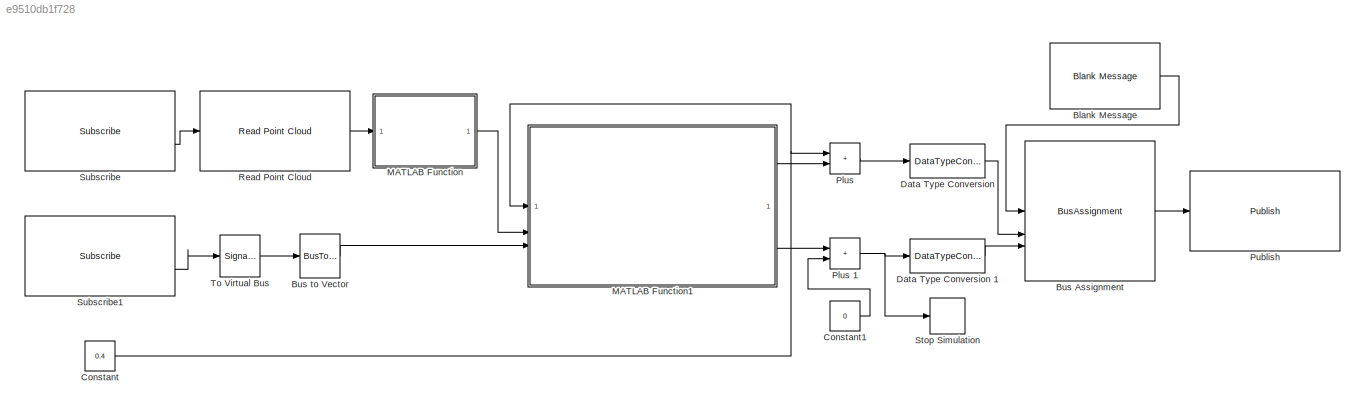
MODEL slx_e9510db1f728
KIND model
CONFIG AbsTol = auto
CONFIG EnableMultiTasking = off
CONFIG FixedStep = auto
CONFIG MaxStep = auto
CONFIG MinStep = auto
CONFIG RelTol = 1e-3
CONFIG SampleTimeConstraint = Unconstrained
CONFIG SolverName = FixedStepAuto
CONFIG StartTime = 0.0
CONFIG StopTime = inf
WORKSPACE source: mxarray member
WORKSPACE SL_ROS_VariableLengthArrays_MaxSizes: object (value not decoded)
BLOCK [Reference] Blank Message  REF=ros2lib/Blank Message  (lib defined in slx_3c1549211f48)
  SourceBlock = ros2lib/Blank Message
  SourceType = ROS2 Blank Message
BLOCK [BusAssignment] Bus Assignment
  AssignedSignals = throttle,brake
BLOCK [BusToVector] Bus to Vector
BLOCK [Constant] Constant
  Value = 0.4
BLOCK [Constant] Constant1
  Value = 0
BLOCK [DataTypeConversion] Data Type Conversion
  OutDataTypeStr = single
  RndMeth = Floor
  SaturateOnIntegerOverflow = off
BLOCK [DataTypeConversion] Data Type Conversion 1
  OutDataTypeStr = single
  RndMeth = Floor
  SaturateOnIntegerOverflow = off
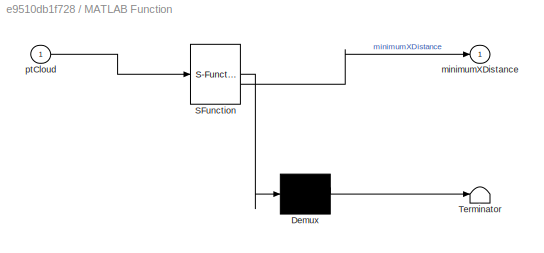
BLOCK [SubSystem] MATLAB Function
  ErrorFcn = Stateflow.Translate.translate
  PermitHierarchicalResolution = ExplicitOnly
  SFBlockType = MATLAB Function
  TreatAsAtomicUnit = on
BLOCK [Demux] MATLAB Function/ Demux 
  Outputs = 1
BLOCK [S-Function] MATLAB Function/ SFunction 
  EnableBusSupport = on
  FunctionName = sf_sfun
  PortCounts = [1 2]
  SFcnIsStateOwnerBlock = off
  SFunctionDeploymentMode = off
  Tag = Stateflow S-Function 2
BLOCK [Terminator] MATLAB Function/ Terminator 
BLOCK [Outport] MATLAB Function/minimumXDistance
BLOCK [Inport] MATLAB Function/ptCloud
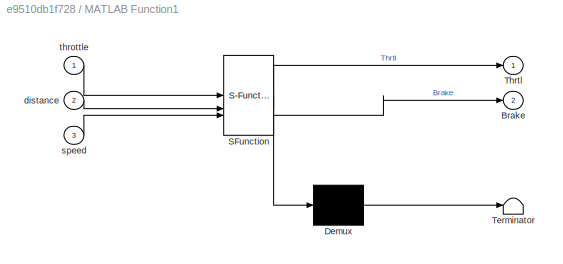
BLOCK [SubSystem] MATLAB Function1
  ErrorFcn = Stateflow.Translate.translate
  PermitHierarchicalResolution = ExplicitOnly
  SFBlockType = MATLAB Function
  TreatAsAtomicUnit = on
BLOCK [Demux] MATLAB Function1/ Demux 
  Outputs = 1
BLOCK [S-Function] MATLAB Function1/ SFunction 
  EnableBusSupport = on
  FunctionName = sf_sfun
  PortCounts = [3 3]
  SFcnIsStateOwnerBlock = off
  SFunctionDeploymentMode = off
  Tag = Stateflow S-Function 1
BLOCK [Terminator] MATLAB Function1/ Terminator 
BLOCK [Outport] MATLAB Function1/Brake
  Port = 2
BLOCK [Outport] MATLAB Function1/Thrtl
BLOCK [Inport] MATLAB Function1/distance
  Port = 2
BLOCK [Inport] MATLAB Function1/speed
  Port = 3
BLOCK [Inport] MATLAB Function1/throttle
BLOCK [Sum] Plus
  IconShape = rectangular
BLOCK [Sum] Plus 1
  IconShape = rectangular
BLOCK [Reference] Publish  REF=ros2lib/Publish  (lib defined in slx_3c1549211f48)
  SourceBlock = ros2lib/Publish
  SourceType = ROS2 Publish
BLOCK [Reference] Read Point Cloud  REF=ros2lib/Read Point Cloud  (lib defined in slx_3c1549211f48)
  SourceBlock = ros2lib/Read Point Cloud
  SourceType = ros.slros2.internal.block.ReadPointCloud
BLOCK [Stop] Stop Simulation
BLOCK [Reference] Subscribe  REF=ros2lib/Subscribe  (lib defined in slx_3c1549211f48)
  SourceBlock = ros2lib/Subscribe
  SourceType = ROS2 Subscribe
BLOCK [Reference] Subscribe1  REF=ros2lib/Subscribe  (lib defined in slx_3c1549211f48)
  SourceBlock = ros2lib/Subscribe
  SourceType = ROS2 Subscribe
BLOCK [SignalConversion] To Virtual Bus
  ConversionOutput = Virtual bus
  OverrideOpt = off
LINE Blank Message:1 -> Bus Assignment:1
LINE Bus Assignment:1 -> Publish:1
LINE Bus to Vector:1 -> MATLAB Function1:3
LINE Constant1:1 -> Plus 1:2
NET Constant:1 -> MATLAB Function1:1, Plus:1
LINE Data Type Conversion 1:1 -> Bus Assignment:3
LINE Data Type Conversion:1 -> Bus Assignment:2
LINE MATLAB Function1:1 -> Plus:2
LINE MATLAB Function1:2 -> Plus 1:1
LINE MATLAB Function:1 -> MATLAB Function1:2
NET Plus 1:1 -> Data Type Conversion 1:1, Stop Simulation:1
LINE Plus:1 -> Data Type Conversion:1
LINE Read Point Cloud:1 -> MATLAB Function:1
LINE Subscribe1:2 -> To Virtual Bus:1
LINE Subscribe:2 -> Read Point Cloud:1
LINE To Virtual Bus:1 -> Bus to Vector:1
note: NET lines group one-source signal fan-out (src -> all destinations, sorted); 1:1 wires keep LINE
CHART MATLAB Function1 states=1 transitions=1
  STATE_LABEL 'eML_blk_kernel()'
  STATE_LABEL 'SCRIPT:\nfunction [Thrtl, Brake] = fcn(throttle, distance, speed)\n\nspeed = speed * 3.6;\n\nbreakingDistance = (speed * speed) / (2 * 9.8 * 0.7 * 3.6 *3.6);\n\nif distance > 0 && distance <= 2*breakingDistance\n    Brake = 1;\n    Thrtl = -throttle;\nelse\n    Brake = 0 ;\n    Thrtl = 0;\n\nend\n'
CHART MATLAB Function states=1 transitions=1
  STATE_LABEL 'eML_blk_kernel()'
  STATE_LABEL 'SCRIPT:\nfunction minimumXDistance  = fcn(ptCloud)\n\nX = ptCloud(:,1);\nY = ptCloud(:,2);\nZ = ptCloud(:,3);\n\nind = find(X>3 & Z>-2 & Y<2 & Y>-2);\n\nTarget_Data = [X(ind), Y(ind), Z(ind)];\n\nxTarget = nonzeros(Target_Data(:,1));\n\nminimumXDistance = 0.0;\n\nif ~isempty(xTarget)\n    minimumXDistance = double(min(xTarget)) - 2.4;\n\nend\n\n'
CHART  states=0 transitions=0
CHART  states=0 transitions=0
